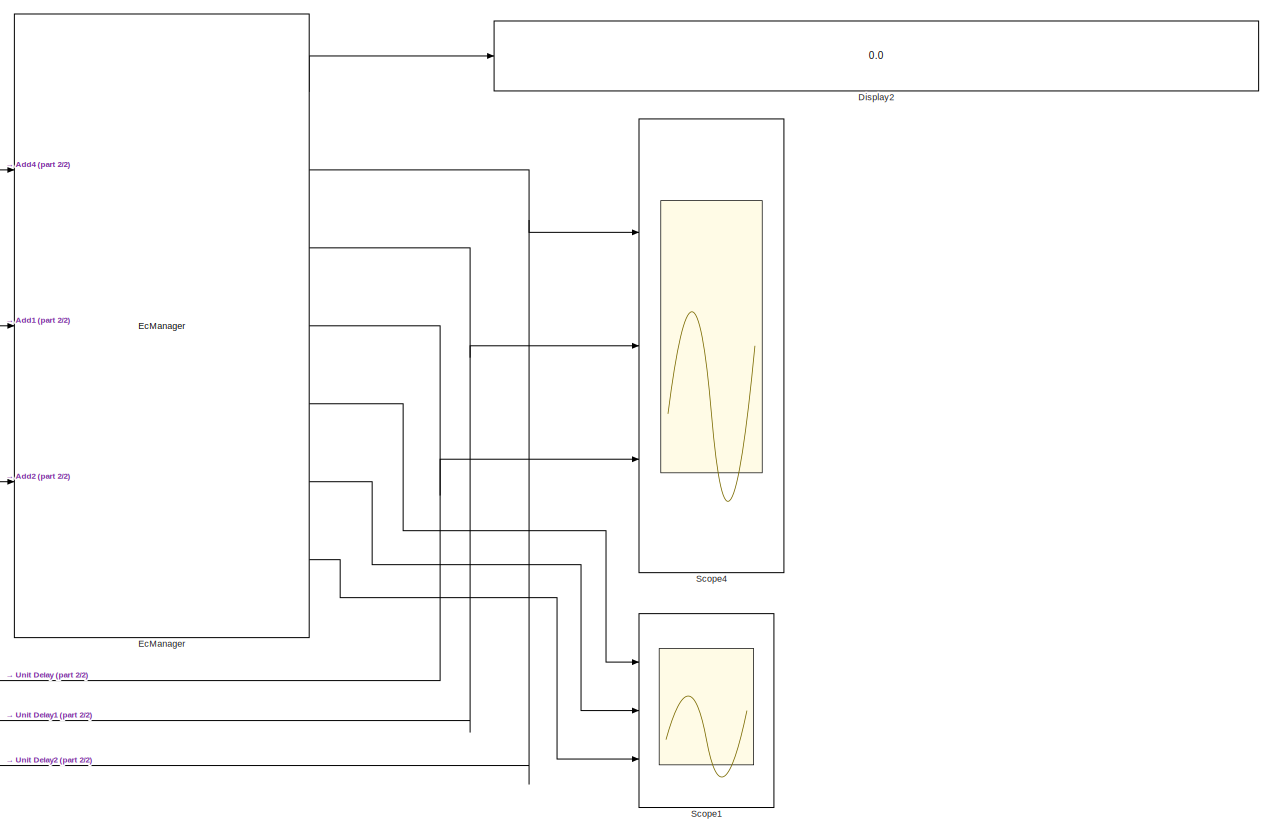
[diagram: root canvas - part 1/2, center side, full height]
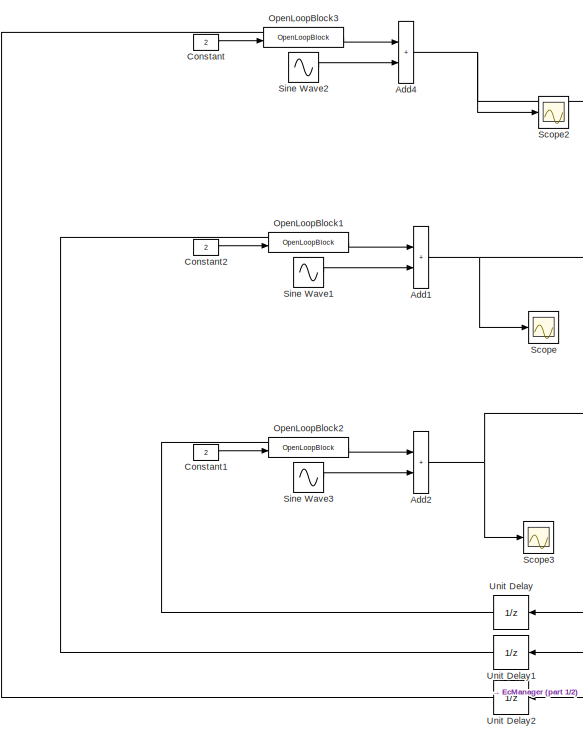
[diagram: root canvas - part 2/2, left side, full height]
MODEL slx_d5dbfbbcf14e
KIND model
CONFIG AbsTol = auto
CONFIG EnableMultiTasking = off
CONFIG FixedStep = 0.05
CONFIG MaxStep = auto
CONFIG MinStep = auto
CONFIG RelTol = 1e-3
CONFIG SampleTimeConstraint = Unconstrained
CONFIG SolverName = ode3
CONFIG StartTime = 0.0
CONFIG StopTime = inf
BLOCK [Sum] Add1
  IconShape = rectangular
  Ports = [2, 1]
BLOCK [Sum] Add2
  IconShape = rectangular
  Ports = [2, 1]
BLOCK [Sum] Add4
  IconShape = rectangular
  Ports = [2, 1]
BLOCK [Constant] Constant
  Value = 2
BLOCK [Constant] Constant1
  Value = 2
BLOCK [Constant] Constant2
  Value = 2
BLOCK [Display] Display2
  Decimation = 1
  Ports = [1]
BLOCK [Reference] EcManager  REF=EcBlockToolbox/EcManager
  Ports = [3, 7]
  SourceBlock = EcBlockToolbox/EcManager
  SourceProductName = EcBlock Toolbox
BLOCK [Reference] OpenLoopBlock1  REF=Utilities/OpenLoopBlock
  Ports = [2, 1]
  SourceBlock = Utilities/OpenLoopBlock
  SourceProductName = XBotBlock Toolbox
  SourceType = SubSystem
BLOCK [Reference] OpenLoopBlock2  REF=Utilities/OpenLoopBlock
  Ports = [2, 1]
  SourceBlock = Utilities/OpenLoopBlock
  SourceProductName = XBotBlock Toolbox
  SourceType = SubSystem
BLOCK [Reference] OpenLoopBlock3  REF=Utilities/OpenLoopBlock
  Ports = [2, 1]
  SourceBlock = Utilities/OpenLoopBlock
  SourceProductName = XBotBlock Toolbox
  SourceType = SubSystem
BLOCK [Scope] Scope
  Floating = off
  NumInputPorts = 1
  Ports = [1]
  ScopeSpecificationString = Simulink.scopes.TimeScopeBlockCfg('CurrentConfiguration', extmgr.ConfigurationSet(extmgr.Configuration('Core','General UI',true),extmgr.Configuration('Core','Source UI',true),extmgr.Configuration('Sources','WiredSimulink',true,'DataLoggingVariableName','ScopeData2'),extmgr.Configuration('Visuals','Time Domain',true,'SerializedDisplays',{struct('MinYLimReal','-3.57738','MaxYLimReal','11.50619','YLa...<+1561ch>
BLOCK [Scope] Scope1
  Floating = off
  NumInputPorts = 3
  Ports = [3]
  ScopeSpecificationString = Simulink.scopes.TimeScopeBlockCfg('CurrentConfiguration', extmgr.ConfigurationSet(extmgr.Configuration('Core','General UI',true),extmgr.Configuration('Core','Source UI',true),extmgr.Configuration('Sources','WiredSimulink',true,'DataLoggingVariableName','ScopeData1'),extmgr.Configuration('Visuals','Time Domain',true,'SerializedDisplays',{struct('MinYLimReal','-6.24956','MaxYLimReal','6.24991','YLab...<+3605ch>
BLOCK [Scope] Scope2
  Floating = off
  NumInputPorts = 1
  Ports = [1]
  ScopeSpecificationString = Simulink.scopes.TimeScopeBlockCfg('CurrentConfiguration', extmgr.ConfigurationSet(extmgr.Configuration('Core','General UI',true),extmgr.Configuration('Core','Source UI',true),extmgr.Configuration('Sources','WiredSimulink',true,'DataLoggingVariableName','ScopeData3'),extmgr.Configuration('Visuals','Time Domain',true,'SerializedDisplays',{struct('MinYLimReal','-1.37497','MaxYLimReal','12.37476','YLa...<+1586ch>
BLOCK [Scope] Scope3
  Floating = off
  NumInputPorts = 1
  Ports = [1]
  ScopeSpecificationString = Simulink.scopes.TimeScopeBlockCfg('CurrentConfiguration', extmgr.ConfigurationSet(extmgr.Configuration('Core','General UI',true),extmgr.Configuration('Core','Source UI',true),extmgr.Configuration('Sources','WiredSimulink',true,'DataLoggingVariableName','ScopeData4'),extmgr.Configuration('Visuals','Time Domain',true,'SerializedDisplays',{struct('MinYLimReal','-49.99189','MaxYLimReal','449.92702','Y...<+1567ch>
BLOCK [Scope] Scope4
  Floating = off
  NumInputPorts = 3
  Ports = [3]
  ScopeSpecificationString = Simulink.scopes.TimeScopeBlockCfg('CurrentConfiguration', extmgr.ConfigurationSet(extmgr.Configuration('Core','General UI',true),extmgr.Configuration('Core','Source UI',true),extmgr.Configuration('Sources','WiredSimulink',true,'DataLoggingVariableName','ScopeData1'),extmgr.Configuration('Visuals','Time Domain',true,'SerializedDisplays',{struct('MinYLimReal','-1.00000','MaxYLimReal','1.00000','YLab...<+3599ch>
BLOCK [Sin] Sine Wave1
  Amplitude = 10
  Ports = [0, 1]
  SampleTime = 0
BLOCK [Sin] Sine Wave2
  Amplitude = 5
  Ports = [0, 1]
  SampleTime = 0
BLOCK [Sin] Sine Wave3
  Amplitude = 300
  Ports = [0, 1]
  SampleTime = 0
BLOCK [UnitDelay] Unit Delay
  HasFrameUpgradeWarning = on
  NameLocation = top
  SampleTime = -1
BLOCK [UnitDelay] Unit Delay1
  HasFrameUpgradeWarning = on
  NameLocation = top
  SampleTime = -1
BLOCK [UnitDelay] Unit Delay2
  HasFrameUpgradeWarning = on
  NameLocation = top
  SampleTime = -1
NET Add1:1 -> EcManager:2, Scope:1
NET Add2:1 -> EcManager:3, Scope3:1
NET Add4:1 -> EcManager:1, Scope2:1
LINE Constant1:1 -> OpenLoopBlock2:2
LINE Constant2:1 -> OpenLoopBlock1:2
LINE Constant:1 -> OpenLoopBlock3:2
LINE EcManager:1 -> Display2:1
NET EcManager:2 -> Scope4:1, Unit Delay2:1
NET EcManager:3 -> Scope4:2, Unit Delay1:1
NET EcManager:4 -> Scope4:3, Unit Delay:1
LINE EcManager:5 -> Scope1:1
LINE EcManager:6 -> Scope1:2
LINE EcManager:7 -> Scope1:3
LINE OpenLoopBlock1:1 -> Add1:1
LINE OpenLoopBlock2:1 -> Add2:1
LINE OpenLoopBlock3:1 -> Add4:1
LINE Sine Wave1:1 -> Add1:2
LINE Sine Wave2:1 -> Add4:2
LINE Sine Wave3:1 -> Add2:2
LINE Unit Delay1:1 -> OpenLoopBlock1:1
LINE Unit Delay2:1 -> OpenLoopBlock3:1
LINE Unit Delay:1 -> OpenLoopBlock2:1
note: NET lines group one-source signal fan-out (src -> all destinations, sorted); 1:1 wires keep LINE
